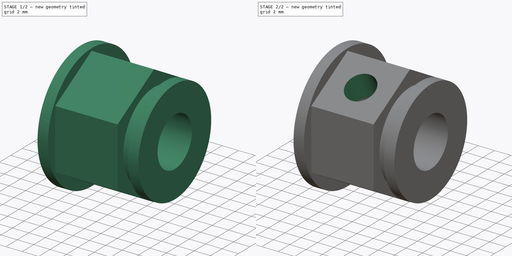
[diagram: build sequence overview — one tinted view per stage of 2, left to right]
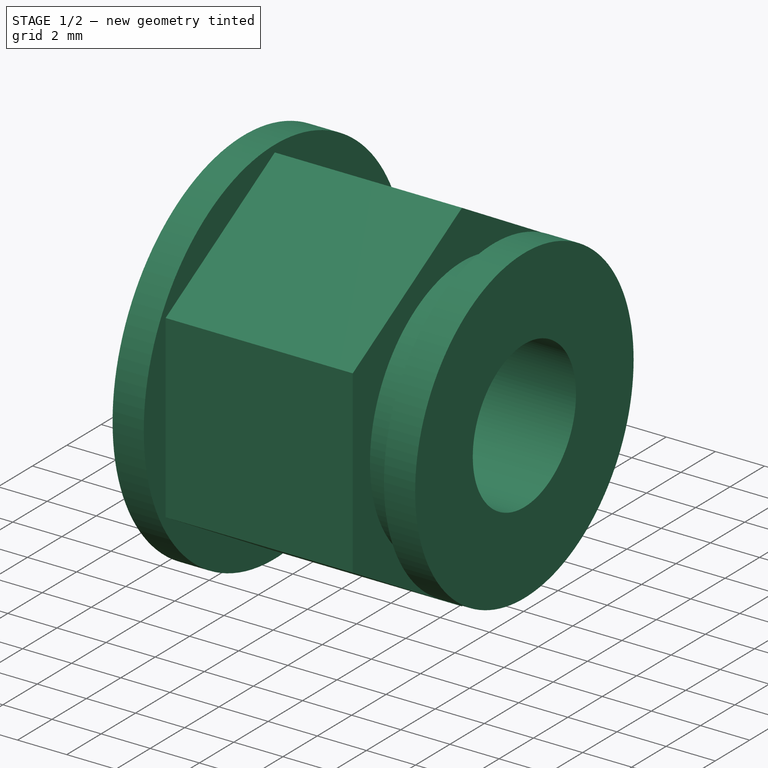
[diagram: stage 1 of 2 — iso view after this stage's code; geometry added in this stage tinted green]
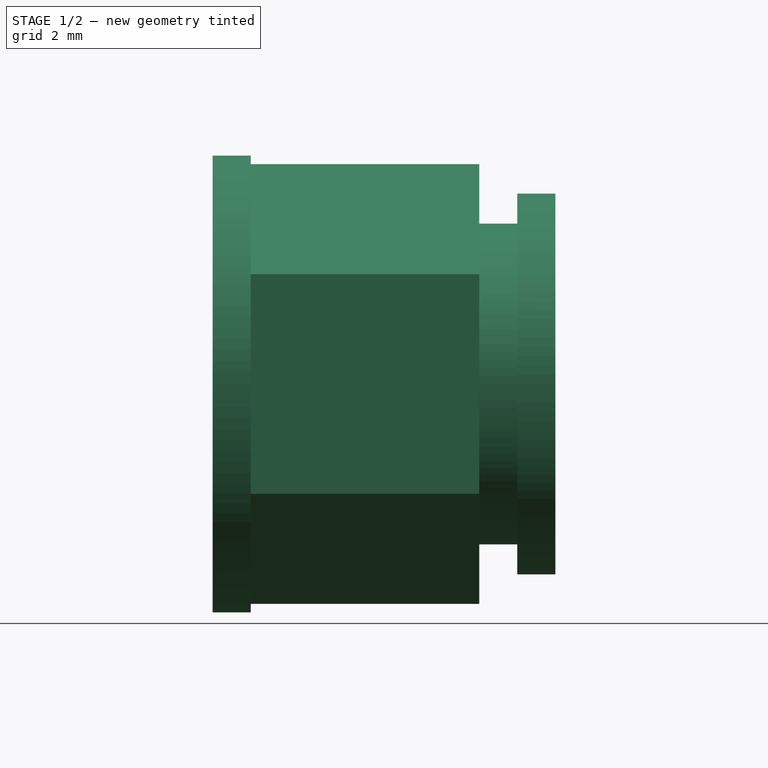
[diagram: stage 1 of 2 — front view after this stage's code; geometry added in this stage tinted green]
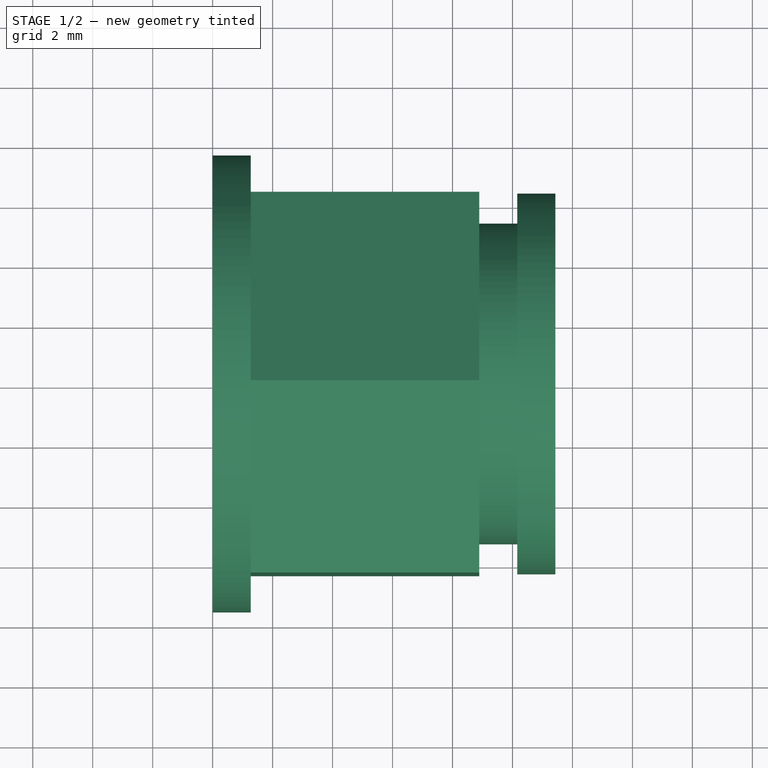
[diagram: stage 1 of 2 — top view after this stage's code; geometry added in this stage tinted green]
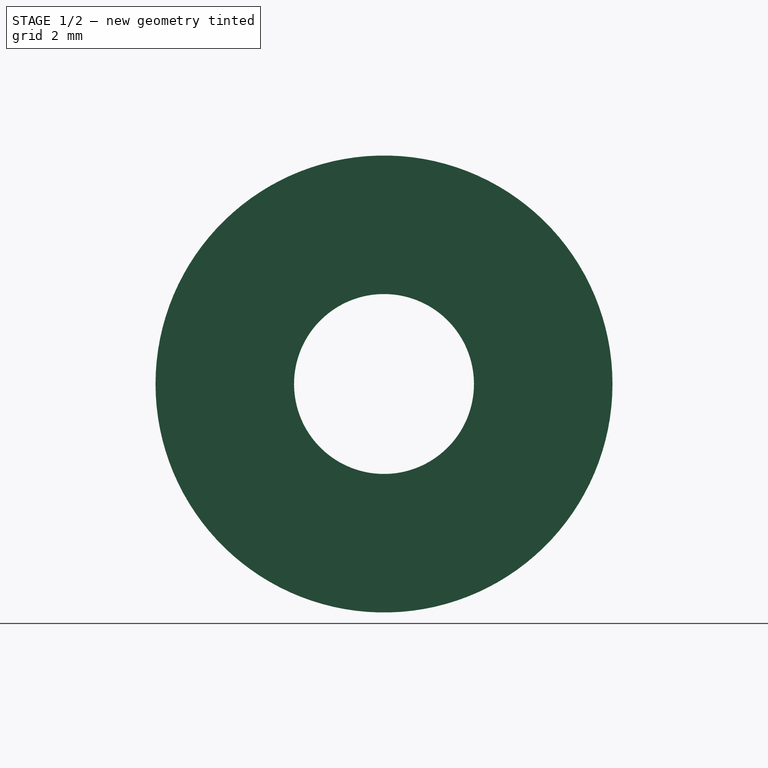
[diagram: stage 1 of 2 — right view after this stage's code; geometry added in this stage tinted green]
FCSTD DOCUMENT  (FreeCAD 0.17RUnknown)
Label: T40H-SM61
License: All rights reserved
LicenseURL: http://en.wikipedia.org/wiki/All_rights_reserved
objects: Sketcher::SketchObject×3, PartDesign::Revolution×1, PartDesign::Pad×1, PartDesign::Pocket×1, PartDesign::Body×1
note: 10 computed .brp shape members not serialized (recipe doc carries the construction recipe); baked Part::Feature solids carry a one-line shape summary decoded from their .brp

FEATURE [Sketcher::SketchObject] Sketch
  MapMode = 5
  Support = -> [XY_Plane]
  sketch-geometry (8):
    g0: LineSegment StartX=0 StartY=3 StartZ=0 EndX=0 EndY=7.62 EndZ=0
    g1: LineSegment StartX=0 StartY=7.62 StartZ=0 EndX=1.27 EndY=7.62 EndZ=0
    g2: LineSegment StartX=1.27 StartY=7.62 StartZ=0 EndX=1.27 EndY=5.35 EndZ=0
    g3: LineSegment StartX=1.27 StartY=5.35 StartZ=0 EndX=10.16 EndY=5.35 EndZ=0
    g4: LineSegment StartX=10.16 StartY=5.35 StartZ=0 EndX=10.16 EndY=6.35 EndZ=0
    g5: LineSegment StartX=10.16 StartY=6.35 StartZ=0 EndX=11.43 EndY=6.35 EndZ=0
    g6: LineSegment StartX=11.43 StartY=6.35 StartZ=0 EndX=11.43 EndY=3 EndZ=0
    g7: LineSegment StartX=11.43 StartY=3 StartZ=0 EndX=0 EndY=3 EndZ=0
  constraints (24):
    c: PointOnObject(g0,g-2)
    c: PointOnObject(g0,g-2)
    c: Coincident(g0,g1)
    c: Horizontal(g1)
    c: Coincident(g1,g2)
    c: Vertical(g2)
    c: Coincident(g2,g3)
    c: Horizontal(g3)
    c: Coincident(g3,g4)
    c: Coincident(g4,g5)
    c: Horizontal(g5)
    c: Coincident(g5,g6)
    c: Vertical(g6)
    c: Coincident(g6,g7)
    c: Coincident(g7,g0)
    c: Horizontal(g7)
    c: Vertical(g4)
    c: DistanceX(g7,g7) = 11.43
    c: DistanceY(g-1,g0) = 7.62
    c: DistanceX(g1,g1) = 1.27
    c: DistanceX(g-1,g3) = 10.16
    c: DistanceY(g-1,g0) = 3
    c: DistanceY(g3,g4) = 1
    c: DistanceY(g-1,g5) = 6.35
FEATURE [PartDesign::Revolution] Revolution
  Angle = 360
  Axis = (1,0,0)
  Base = (0,0,0)
  Profile = -> Sketch
  ReferenceAxis = -> Sketch [H_Axis]
FEATURE [Sketcher::SketchObject] Sketch001
  MapMode = 5
  Placement = pos=(1.27,0,0) rot=(0.57735,0.57735,0.57735;2.0944rad)
  Support = -> [Revolution]
  sketch-geometry (10):
    g0: LineSegment StartX=0 StartY=7.33235 StartZ=0 EndX=-6.35 EndY=3.66617 EndZ=0
    g1: LineSegment StartX=-6.35 StartY=3.66617 StartZ=0 EndX=-6.35 EndY=-3.66617 EndZ=0
    g2: LineSegment StartX=-6.35 StartY=-3.66617 StartZ=0 EndX=0 EndY=-7.33235 EndZ=0
    g3: LineSegment StartX=0 StartY=-7.33235 StartZ=0 EndX=6.35 EndY=-3.66617 EndZ=0
    g4: LineSegment StartX=6.35 StartY=-3.66617 StartZ=0 EndX=6.35 EndY=3.66617 EndZ=0
    g5: LineSegment StartX=6.35 StartY=3.66617 StartZ=0 EndX=0 EndY=7.33235 EndZ=0
    g6: LineSegment [constr] StartX=0 StartY=0 StartZ=0 EndX=0 EndY=7.33235 EndZ=0
    g7: LineSegment [constr] StartX=0 StartY=0 StartZ=0 EndX=-6.35 EndY=3.66617 EndZ=0
    g8: LineSegment [constr] StartX=0 StartY=0 StartZ=0 EndX=-6.35 EndY=-3.66617 EndZ=0
    g9: Circle CenterX=0 CenterY=0 CenterZ=0 NormalX=0 NormalY=0 NormalZ=1 AngleXU=0 Radius=3
  constraints (26):
    c: PointOnObject(g0,g-2)
    c: Coincident(g0,g1)
    c: Coincident(g1,g2)
    c: Coincident(g2,g3)
    c: Coincident(g3,g4)
    c: Coincident(g4,g5)
    c: Coincident(g5,g0)
    c: Coincident(g6,g-1)
    c: Coincident(g6,g0)
    c: Coincident(g7,g-1)
    c: Coincident(g7,g0)
    c: Coincident(g8,g-1)
    c: Coincident(g8,g1)
    c: Equal(g8,g7)
    c: Equal(g7,g6)
    c: Equal(g0,g1)
    c: Equal(g1,g2)
    c: Equal(g2,g3)
    c: Equal(g3,g4)
    c: Equal(g4,g5)
    c: PointOnObject(g2,g-2)
    c: Vertical(g1)
    c: Vertical(g4)
    c: Distance(g2,g4) = 12.7
    c: Coincident(g9,g-1)
    c: Radius(g9) = 3
FEATURE [PartDesign::Pad] Pad
  BaseFeature = -> Revolution
  Length = 7.62
  Length2 = 100
  Profile = -> Sketch001
  Type = 0
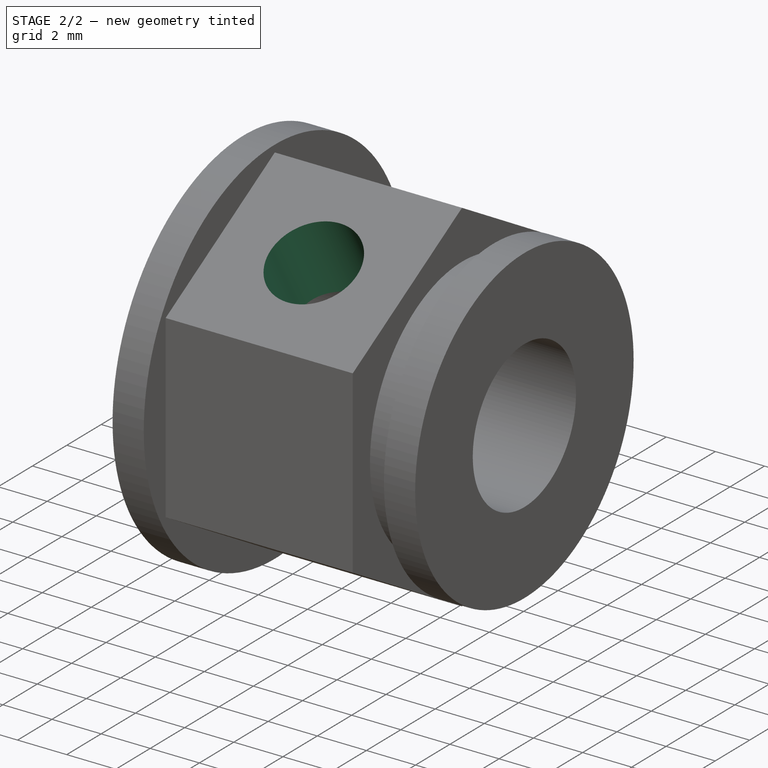
[diagram: stage 2 of 2 — iso view after this stage's code; geometry added in this stage tinted green]
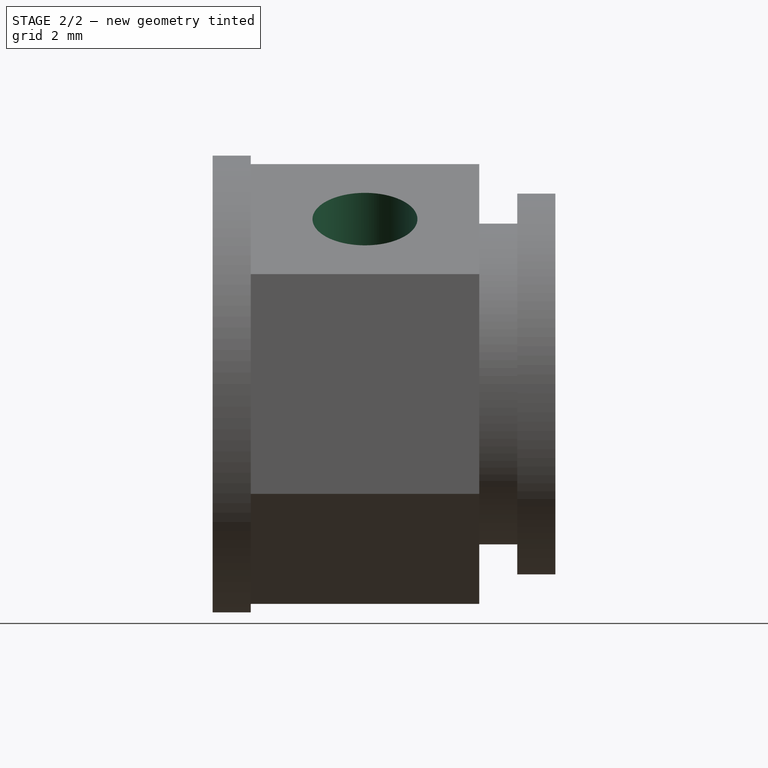
[diagram: stage 2 of 2 — front view after this stage's code; geometry added in this stage tinted green]
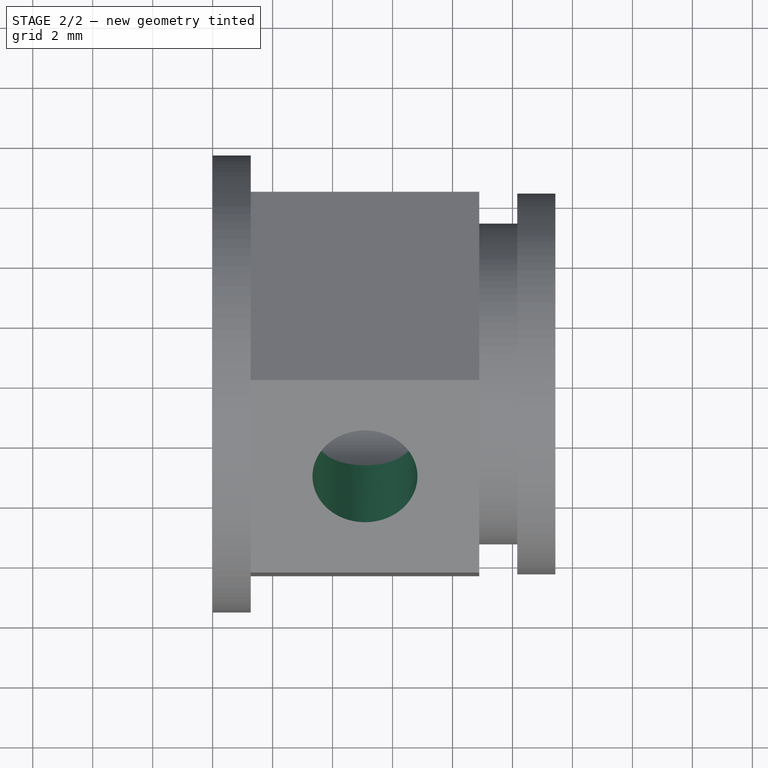
[diagram: stage 2 of 2 — top view after this stage's code; geometry added in this stage tinted green]
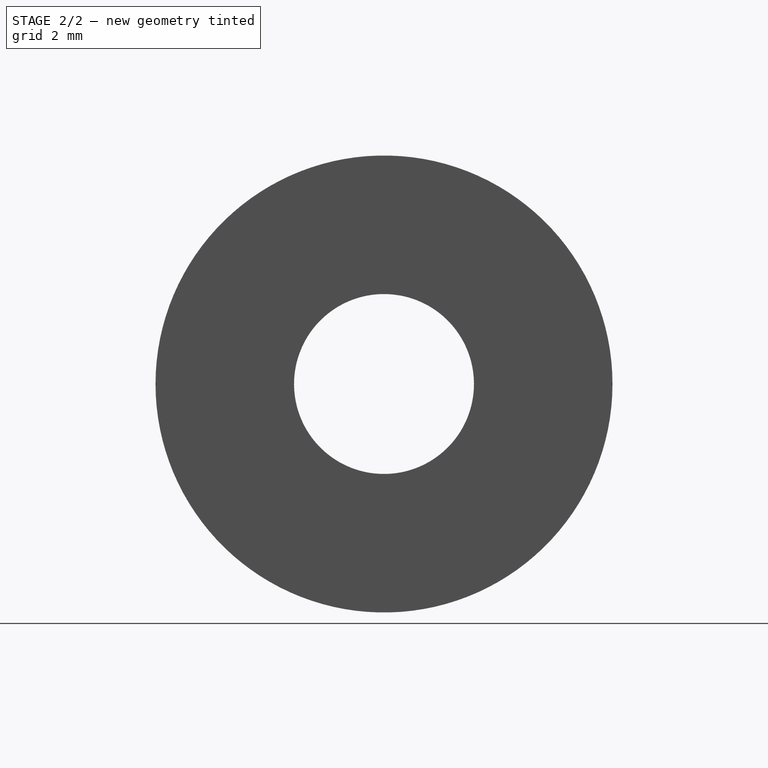
[diagram: stage 2 of 2 — right view after this stage's code; geometry added in this stage tinted green]
FEATURE [Sketcher::SketchObject] Sketch002
  MapMode = 5
  Placement = pos=(0,-3.175,5.49926) rot=(1,0,0;0.523599rad)
  Support = -> [Pad]
  sketch-geometry (1):
    g0: Circle CenterX=5.08 CenterY=0 CenterZ=0 NormalX=0 NormalY=0 NormalZ=1 AngleXU=0 Radius=1.75
  constraints (3):
    c: PointOnObject(g0,g-1)
    c: DistanceX(g-1,g0) = 5.08
    c: Radius(g0) = 1.75
FEATURE [PartDesign::Pocket] Pocket
  BaseFeature = -> Pad
  Length = 5
  Length2 = 100
  Profile = -> Sketch002
  Type = 2
FEATURE [PartDesign::Body] Body
  Group = -> [Sketch,Revolution,Sketch001,Pad,Sketch002,Pocket]
  Origin = -> Origin
  Tip = -> Pocket
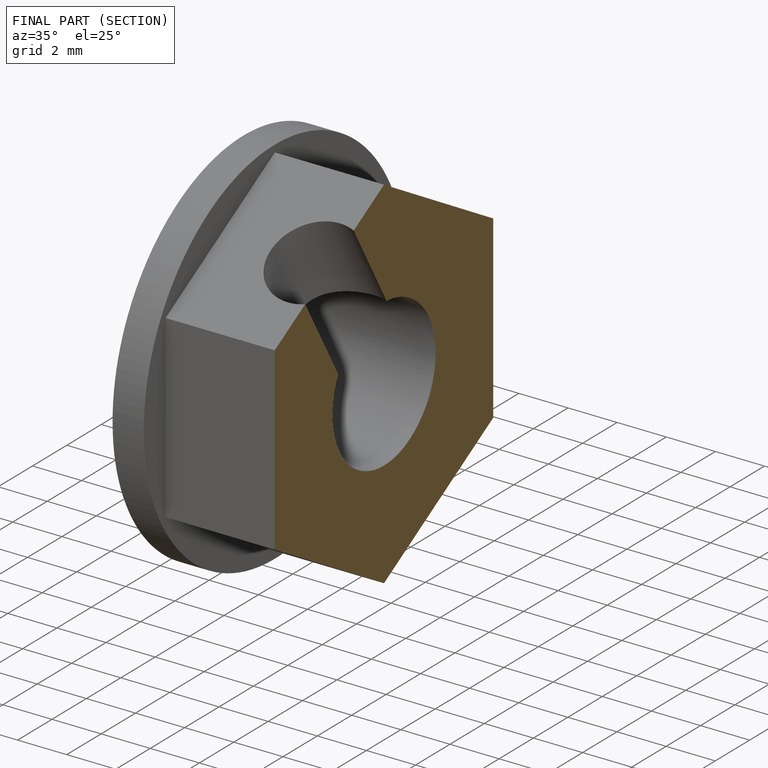
[diagram: finished part — half-section view (interior)]
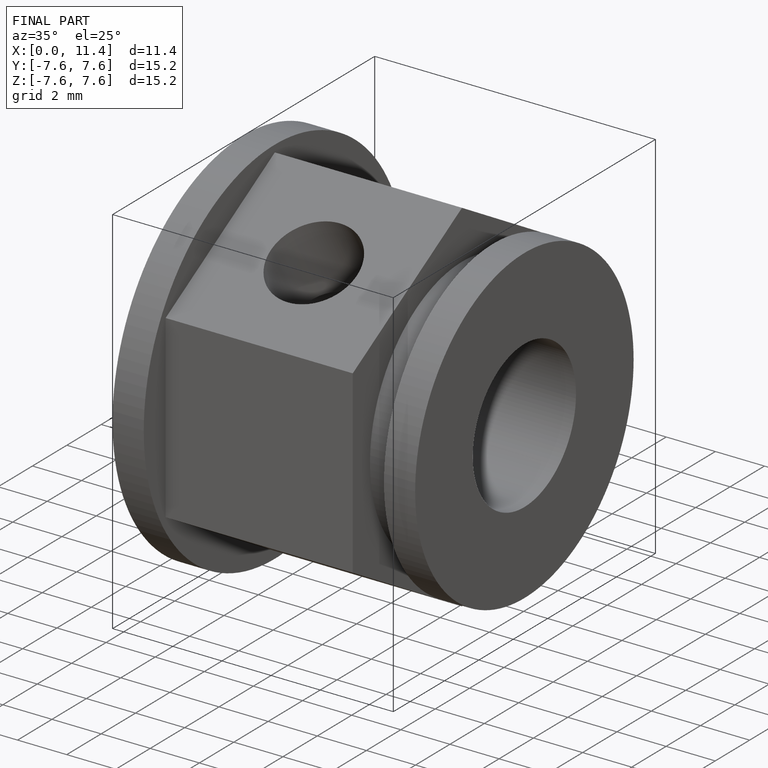
[diagram: finished part — iso view with bounding-box wireframe]
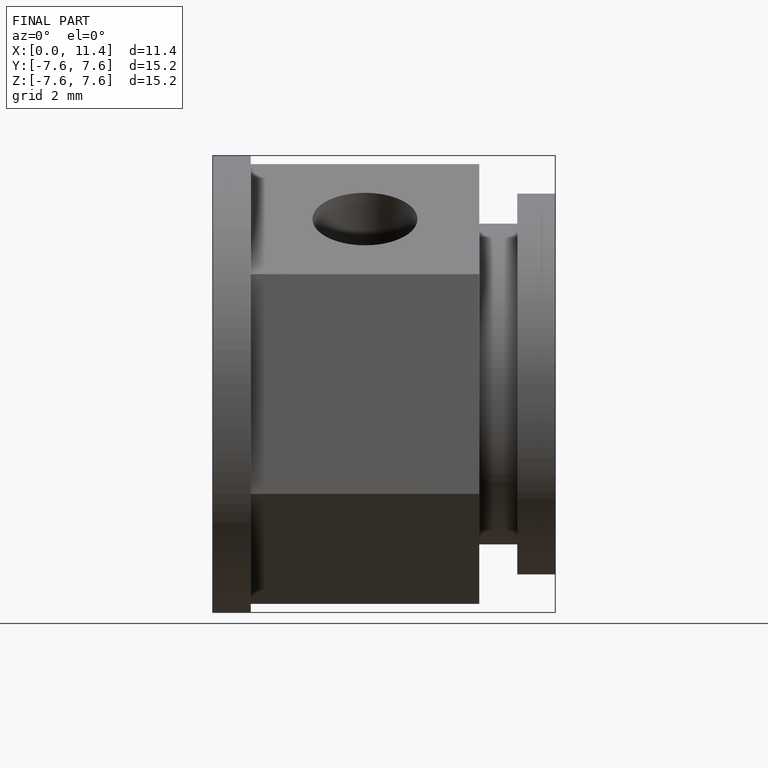
[diagram: finished part — front view with bounding-box wireframe]
